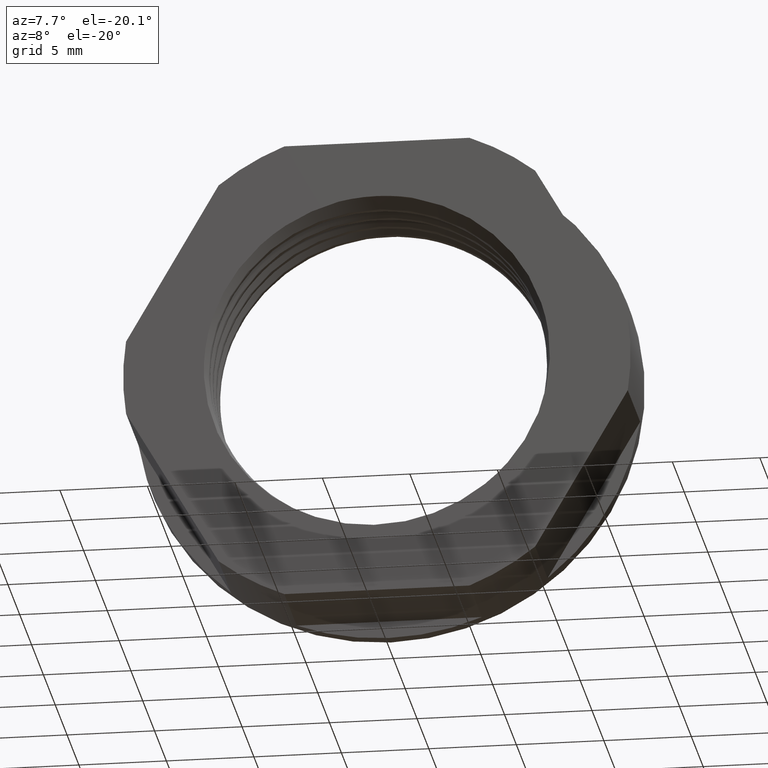
[diagram: clean part render]
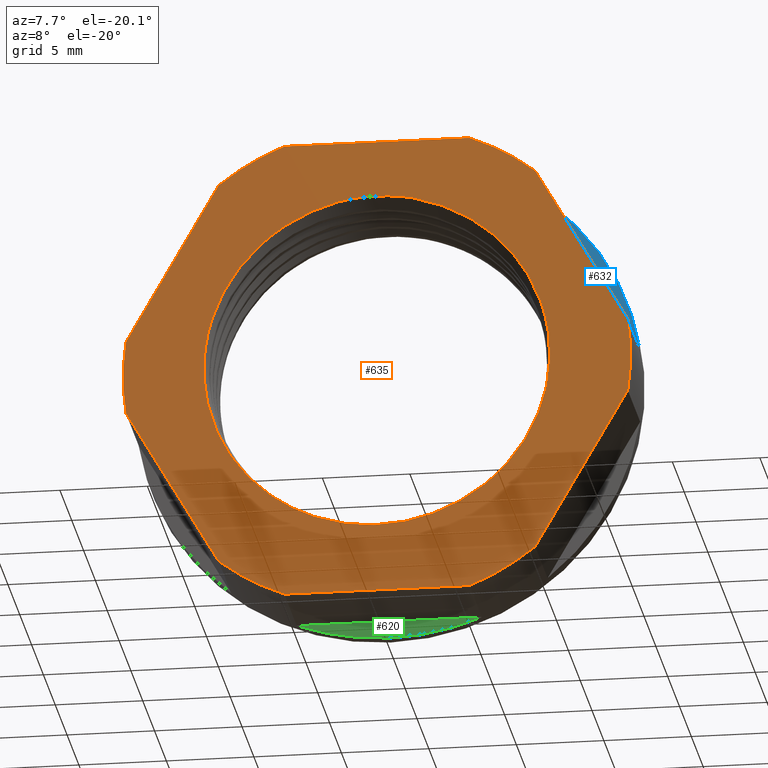
[diagram: same view with three faces highlighted in distinct colors, each labeled with its STEP entity id]
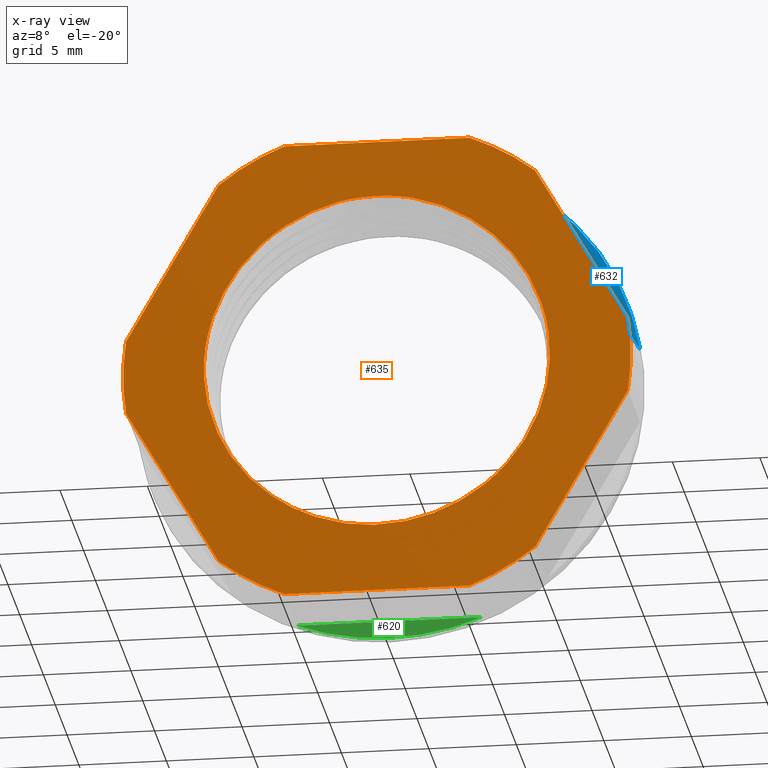
[diagram: x-ray of the same camera — body ghosted, the three highlighted faces saturated]
A machine part, auxiliary view with three faces highlighted in distinct colors.
The next image is the same camera in x-ray (body ghosted, the three faces saturated) — at least one of them is partly hidden behind the body in this view.
Their STEP definitions:

[orange] entity #635 — the highlighted planar face has unit normal (0, -1, 0).
#212 = CARTESIAN_POINT ( 'NONE',  ( -9.045591640025342900, -16.94999999999999900, 11.33257569495583400 ) ) ;
#213 = CARTESIAN_POINT ( 'NONE',  ( 5.291502622129183200, -16.94999999999999900, 13.50000000000000000 ) ) ;
#216 = CARTESIAN_POINT ( 'NONE',  ( -14.33709426215451700, -16.94999999999999900, -2.167424305044142400 ) ) ;
#217 = CARTESIAN_POINT ( 'NONE',  ( -5.291502622129190300, -16.94999999999999900, -13.49999999999999600 ) ) ;
#218 = CARTESIAN_POINT ( 'NONE',  ( -9.045591640025335800, -16.94999999999999900, -11.33257569495583900 ) ) ;
#225 = CARTESIAN_POINT ( 'NONE',  ( -5.291502622129185900, -16.94999999999999900, 13.49999999999999800 ) ) ;
#230 = CARTESIAN_POINT ( 'NONE',  ( 0.0000000000000000000, -16.94999999999999900, 10.25000000000000000 ) ) ;
#236 = CARTESIAN_POINT ( 'NONE',  ( 9.045591640025362400, -16.94999999999999900, -11.33257569495581600 ) ) ;
#237 = CARTESIAN_POINT ( 'NONE',  ( -5.974655530081877300, -16.94999999999999900, -7.573463129866142100 ) ) ;
#239 = CARTESIAN_POINT ( 'NONE',  ( -2.205671759929469300, -16.94999999999999900, 10.00987073280417900 ) ) ;
#241 = CARTESIAN_POINT ( 'NONE',  ( 14.33709426215451200, -16.94999999999999900, 2.167424305044173000 ) ) ;
#247 = CARTESIAN_POINT ( 'NONE',  ( 5.291502622129186800, -16.94999999999999900, -13.49999999999999800 ) ) ;
#256 = CARTESIAN_POINT ( 'NONE',  ( 14.33709426215450800, -16.94999999999999900, -2.167424305044193900 ) ) ;
#257 = CARTESIAN_POINT ( 'NONE',  ( -14.33709426215451200, -16.94999999999999900, 2.167424305044173500 ) ) ;
#258 = CARTESIAN_POINT ( 'NONE',  ( 1.983956533181644400, -16.94999999999999900, 10.05616310898176900 ) ) ;
#259 = CARTESIAN_POINT ( 'NONE',  ( 9.045591640025344700, -16.94999999999999900, 11.33257569495583000 ) ) ;
#261 = CARTESIAN_POINT ( 'NONE',  ( 6.144543143155605200, -16.94999999999999900, -7.436292224252573700 ) ) ;
#537 = EDGE_CURVE ( 'NONE', #757, #781, #1429, .T. ) ;
#549 = EDGE_CURVE ( 'NONE', #749, #775, #1445, .T. ) ;
#561 = EDGE_CURVE ( 'NONE', #761, #784, #1455, .T. ) ;
#564 = EDGE_CURVE ( 'NONE', #785, #841, #1478, .T. ) ;
#569 = EDGE_CURVE ( 'NONE', #841, #776, #2420, .T. ) ;
#571 = EDGE_CURVE ( 'NONE', #757, #792, #1150, .T. ) ;
#576 = EDGE_CURVE ( 'NONE', #760, #775, #1133, .T. ) ;
#580 = EDGE_CURVE ( 'NONE', #761, #781, #1137, .T. ) ;
#584 = EDGE_CURVE ( 'NONE', #760, #771, #1463, .T. ) ;
#585 = EDGE_CURVE ( 'NONE', #747, #785, #1488, .T. ) ;
#589 = EDGE_CURVE ( 'NONE', #748, #771, #2377, .T. ) ;
#591 = EDGE_CURVE ( 'NONE', #754, #792, #1453, .T. ) ;
#592 = EDGE_CURVE ( 'NONE', #768, #747, #2422, .T. ) ;
#595 = EDGE_CURVE ( 'NONE', #776, #768, #2423, .T. ) ;
#606 = EDGE_CURVE ( 'NONE', #749, #784, #1700, .T. ) ;
#621 = EDGE_CURVE ( 'NONE', #748, #746, #1531, .T. ) ;
#623 = EDGE_CURVE ( 'NONE', #754, #746, #1858, .T. ) ;
#635 = ADVANCED_FACE ( 'NONE', ( #1926, #1889 ), #1922, .T. ) ;
#700 = EDGE_LOOP ( 'NONE', ( #848, #832, #894, #915, #859, #914, #880, #905, #907, #908, #865, #878 ) ) ;
#707 = EDGE_LOOP ( 'NONE', ( #716, #847, #863, #835, #849 ) ) ;
#716 = ORIENTED_EDGE ( 'NONE', *, *, #569, .T. ) ;
#746 = VERTEX_POINT ( 'NONE', #257 ) ;
#747 = VERTEX_POINT ( 'NONE', #239 ) ;
#748 = VERTEX_POINT ( 'NONE', #216 ) ;
#749 = VERTEX_POINT ( 'NONE', #236 ) ;
#754 = VERTEX_POINT ( 'NONE', #212 ) ;
#757 = VERTEX_POINT ( 'NONE', #213 ) ;
#760 = VERTEX_POINT ( 'NONE', #217 ) ;
#761 = VERTEX_POINT ( 'NONE', #241 ) ;
#768 = VERTEX_POINT ( 'NONE', #237 ) ;
#771 = VERTEX_POINT ( 'NONE', #218 ) ;
#775 = VERTEX_POINT ( 'NONE', #247 ) ;
#776 = VERTEX_POINT ( 'NONE', #261 ) ;
#781 = VERTEX_POINT ( 'NONE', #259 ) ;
#784 = VERTEX_POINT ( 'NONE', #256 ) ;
#785 = VERTEX_POINT ( 'NONE', #230 ) ;
#792 = VERTEX_POINT ( 'NONE', #225 ) ;
#832 = ORIENTED_EDGE ( 'NONE', *, *, #621, .F. ) ;
#835 = ORIENTED_EDGE ( 'NONE', *, *, #585, .T. ) ;
#841 = VERTEX_POINT ( 'NONE', #258 ) ;
#847 = ORIENTED_EDGE ( 'NONE', *, *, #595, .T. ) ;
#848 = ORIENTED_EDGE ( 'NONE', *, *, #623, .T. ) ;
#849 = ORIENTED_EDGE ( 'NONE', *, *, #564, .T. ) ;
#859 = ORIENTED_EDGE ( 'NONE', *, *, #576, .T. ) ;
#863 = ORIENTED_EDGE ( 'NONE', *, *, #592, .T. ) ;
#865 = ORIENTED_EDGE ( 'NONE', *, *, #571, .T. ) ;
#878 = ORIENTED_EDGE ( 'NONE', *, *, #591, .F. ) ;
#880 = ORIENTED_EDGE ( 'NONE', *, *, #606, .T. ) ;
#894 = ORIENTED_EDGE ( 'NONE', *, *, #589, .T. ) ;
#905 = ORIENTED_EDGE ( 'NONE', *, *, #561, .F. ) ;
#907 = ORIENTED_EDGE ( 'NONE', *, *, #580, .T. ) ;
#908 = ORIENTED_EDGE ( 'NONE', *, *, #537, .F. ) ;
#914 = ORIENTED_EDGE ( 'NONE', *, *, #549, .F. ) ;
#915 = ORIENTED_EDGE ( 'NONE', *, *, #584, .F. ) ;
#941 = CARTESIAN_POINT ( 'NONE',  ( 0.0000000000000000000, -16.94999999999999900, 0.0000000000000000000 ) ) ;
#942 = DIRECTION ( 'NONE',  ( -0.0000000000000000000, 1.000000000000000000, -0.0000000000000000000 ) ) ;
#943 = DIRECTION ( 'NONE',  ( 0.0000000000000000000, 0.0000000000000000000, -1.000000000000000000 ) ) ;
#968 = CARTESIAN_POINT ( 'NONE',  ( 0.0000000000000000000, -16.94999999999999900, 0.0000000000000000000 ) ) ;
#969 = DIRECTION ( 'NONE',  ( -0.0000000000000000000, 1.000000000000000000, -0.0000000000000000000 ) ) ;
#990 = DIRECTION ( 'NONE',  ( 8.881784197001252300E-016, 0.0000000000000000000, -1.000000000000000000 ) ) ;
#1064 = CARTESIAN_POINT ( 'NONE',  ( 1.983956533181644400, -16.94999999999999900, 10.05616310898176900 ) ) ;
#1065 = DIRECTION ( 'NONE',  ( -0.0000000000000000000, 1.000000000000000000, -0.0000000000000000000 ) ) ;
#1066 = CARTESIAN_POINT ( 'NONE',  ( 2.439341057739169200, -16.95000000000000300, 9.953836712150849300 ) ) ;
#1067 = DIRECTION ( 'NONE',  ( 0.0000000000000000000, 0.0000000000000000000, -1.000000000000000000 ) ) ;
#1070 = DIRECTION ( 'NONE',  ( 0.0000000000000000000, 0.0000000000000000000, -1.000000000000000000 ) ) ;
#1072 = CARTESIAN_POINT ( 'NONE',  ( 2.893623122085117000, -16.94999999999999900, 9.818351411251621000 ) ) ;
#1073 = CARTESIAN_POINT ( 'NONE',  ( 3.771033077095955500, -16.94999999999999600, 9.488892789449479900 ) ) ;
#1074 = CARTESIAN_POINT ( 'NONE',  ( 4.194879845517786700, -16.94999999999999600, 9.295385743889102800 ) ) ;
#1075 = CARTESIAN_POINT ( 'NONE',  ( 5.408174023068104600, -16.95000000000001000, 8.602052114201978100 ) ) ;
#1076 = CARTESIAN_POINT ( 'NONE',  ( 6.525269508887746800, -16.95000000000000300, 7.739964048729434300 ) ) ;
#1077 = CARTESIAN_POINT ( 'NONE',  ( 8.076914458625999800, -16.95000000000000300, 6.003836458888972800 ) ) ;
#1078 = CARTESIAN_POINT ( 'NONE',  ( 8.340676717325779400, -16.95000000000000300, 5.609032992062153300 ) ) ;
#1080 = CARTESIAN_POINT ( 'NONE',  ( 9.005723773938594700, -16.95000000000001000, 4.377459087218518600 ) ) ;
#1083 = CARTESIAN_POINT ( 'NONE',  ( 5.013449165093358100, -16.94999999999998500, 8.851963172312284900 ) ) ;
#1084 = CARTESIAN_POINT ( 'NONE',  ( 9.493154033249798100, -16.95000000000001000, 3.062732793654617100 ) ) ;
#1085 = CARTESIAN_POINT ( 'NONE',  ( 9.915878206985052400, -16.94999999999999600, 0.7635781952563502900 ) ) ;
#1087 = CARTESIAN_POINT ( 'NONE',  ( 7.192787527019289600, -16.94999999999999900, 7.090168983500257500 ) ) ;
#1088 = CARTESIAN_POINT ( 'NONE',  ( 9.825406449304612300, -16.95000000000000600, 1.690508015303501700 ) ) ;
#1089 = CARTESIAN_POINT ( 'NONE',  ( 0.0000000000000000000, -16.94999999999999900, 0.0000000000000000000 ) ) ;
#1092 = CARTESIAN_POINT ( 'NONE',  ( 9.864639634185879300, -16.94999999999999200, -0.4102757157103477100 ) ) ;
#1093 = CARTESIAN_POINT ( 'NONE',  ( 9.845766962212840300, -16.95000000000000300, -0.6462498485281831200 ) ) ;
#1094 = CARTESIAN_POINT ( 'NONE',  ( 9.791519739661049800, -16.94999999999999900, -1.112304402917254200 ) ) ;
#1095 = CARTESIAN_POINT ( 'NONE',  ( 9.756141003678495200, -16.94999999999999200, -1.343290073347451100 ) ) ;
#1100 = CARTESIAN_POINT ( 'NONE',  ( 6.167414772369514100, -16.95000000000001000, 8.043720548986460300 ) ) ;
#1101 = CARTESIAN_POINT ( 'NONE',  ( 7.503479304800611000, -16.94999999999999900, 6.743289189596457500 ) ) ;
#1103 = CARTESIAN_POINT ( 'NONE',  ( 8.803967217686727400, -16.94999999999999900, 4.797012241301902500 ) ) ;
#1104 = CARTESIAN_POINT ( 'NONE',  ( 9.350034010654027800, -16.95000000000001400, 3.511527537128751800 ) ) ;
#1105 = DIRECTION ( 'NONE',  ( -0.0000000000000000000, 1.000000000000000000, -0.0000000000000000000 ) ) ;
#1108 = CARTESIAN_POINT ( 'NONE',  ( 0.0000000000000000000, -16.94999999999999900, 0.0000000000000000000 ) ) ;
#1117 = CARTESIAN_POINT ( 'NONE',  ( 9.203108965238902400, -16.94999999999999600, -3.364135484670377300 ) ) ;
#1118 = DIRECTION ( 'NONE',  ( -1.000000000000000000, 0.0000000000000000000, -2.081668171172169700E-016 ) ) ;
#1120 = CARTESIAN_POINT ( 'NONE',  ( 6.857274697728805700, -16.95000000000000600, -6.836040393671275700 ) ) ;
#1122 = CARTESIAN_POINT ( 'NONE',  ( 7.507126428066445800, -16.95000000000001000, -6.154935727862492100 ) ) ;
#1123 = CARTESIAN_POINT ( 'NONE',  ( 9.017052777795754500, -16.94999999999999600, -3.801012142619362600 ) ) ;
#1124 = CARTESIAN_POINT ( 'NONE',  ( 8.346798934203786000, -16.94999999999999900, -5.031645817817508100 ) ) ;
#1133 = LINE ( 'NONE', #1136, #1454 ) ;
#1136 = CARTESIAN_POINT ( 'NONE',  ( -5.679568645592710600, -16.94999999999999900, -13.50000000000000200 ) ) ;
#1137 = LINE ( 'NONE', #1180, #1484 ) ;
#1138 = CARTESIAN_POINT ( 'NONE',  ( 6.144543143155605200, -16.94999999999999900, -7.436292224252573700 ) ) ;
#1139 = DIRECTION ( 'NONE',  ( 1.000000000000000000, 0.0000000000000000000, 2.081668171172169700E-016 ) ) ;
#1142 = CARTESIAN_POINT ( 'NONE',  ( 8.589014060184313200, -16.94999999999999600, -4.633664672327876500 ) ) ;
#1143 = CARTESIAN_POINT ( 'NONE',  ( 6.511364237388283600, -16.94999999999999600, -7.149610080928056300 ) ) ;
#1144 = CARTESIAN_POINT ( 'NONE',  ( 9.506511089265158500, -16.94999999999999900, -2.480229746508164200 ) ) ;
#1149 = CARTESIAN_POINT ( 'NONE',  ( 9.625718633772603300, -16.94999999999998900, -2.030240780154815500 ) ) ;
#1150 = LINE ( 'NONE', #1151, #1480 ) ;
#1151 = CARTESIAN_POINT ( 'NONE',  ( 5.679568645592732800, -16.94999999999999900, 13.50000000000000200 ) ) ;
#1160 = CARTESIAN_POINT ( 'NONE',  ( 7.806712100327884800, -16.95000000000000300, -5.791396054968911900 ) ) ;
#1165 = DIRECTION ( 'NONE',  ( 0.0000000000000000000, 0.0000000000000000000, -1.000000000000000000 ) ) ;
#1169 = DIRECTION ( 'NONE',  ( 6.217248937900878200E-015, 0.0000000000000000000, -1.000000000000000000 ) ) ;
#1172 = CARTESIAN_POINT ( 'NONE',  ( 0.0000000000000000000, -16.94999999999999900, 0.0000000000000000000 ) ) ;
#1174 = DIRECTION ( 'NONE',  ( -0.0000000000000000000, 1.000000000000000000, -0.0000000000000000000 ) ) ;
#1180 = CARTESIAN_POINT ( 'NONE',  ( 14.53112727388628200, -16.94999999999999900, 1.831349270379130800 ) ) ;
#1195 = DIRECTION ( 'NONE',  ( -0.0000000000000000000, 1.000000000000000000, -0.0000000000000000000 ) ) ;
#1208 = DIRECTION ( 'NONE',  ( -0.4999999999999998900, 0.0000000000000000000, 0.8660254037844387100 ) ) ;
#1211 = CARTESIAN_POINT ( 'NONE',  ( 0.0000000000000000000, -16.94999999999999900, 0.0000000000000000000 ) ) ;
#1424 = AXIS2_PLACEMENT_3D ( 'NONE', #941, #942, #943 ) ;
#1429 = CIRCLE ( 'NONE', #1424, 14.50000000000000000 ) ;
#1436 = AXIS2_PLACEMENT_3D ( 'NONE', #968, #969, #990 ) ;
#1445 = CIRCLE ( 'NONE', #1436, 14.50000000000000000 ) ;
#1453 = CIRCLE ( 'NONE', #1461, 14.50000000000000000 ) ;
#1454 = VECTOR ( 'NONE', #1139, 1000.000000000000000 ) ;
#1455 = CIRCLE ( 'NONE', #1458, 14.50000000000000000 ) ;
#1458 = AXIS2_PLACEMENT_3D ( 'NONE', #1108, #1105, #1067 ) ;
#1461 = AXIS2_PLACEMENT_3D ( 'NONE', #2409, #2372, #2370 ) ;
#1463 = CIRCLE ( 'NONE', #1485, 14.50000000000000000 ) ;
#1471 = VECTOR ( 'NONE', #2395, 1000.000000000000000 ) ;
#1478 = CIRCLE ( 'NONE', #1479, 10.25000000000000000 ) ;
#1479 = AXIS2_PLACEMENT_3D ( 'NONE', #1089, #1065, #1070 ) ;
#1480 = VECTOR ( 'NONE', #1118, 1000.000000000000000 ) ;
#1484 = VECTOR ( 'NONE', #1208, 1000.000000000000000 ) ;
#1485 = AXIS2_PLACEMENT_3D ( 'NONE', #1172, #1174, #1165 ) ;
#1488 = CIRCLE ( 'NONE', #1489, 10.25000000000000000 ) ;
#1489 = AXIS2_PLACEMENT_3D ( 'NONE', #1211, #1195, #1169 ) ;
#1498 = VECTOR ( 'NONE', #1692, 1000.000000000000000 ) ;
#1502 = VECTOR ( 'NONE', #1872, 1000.000000000000000 ) ;
#1514 = AXIS2_PLACEMENT_3D ( 'NONE', #1853, #1863, #1842 ) ;
#1519 = AXIS2_PLACEMENT_3D ( 'NONE', #1896, #1885, #1920 ) ;
#1531 = CIRCLE ( 'NONE', #1514, 14.50000000000000000 ) ;
#1547 = CARTESIAN_POINT ( 'NONE',  ( 4.294305493426485900, -16.95000000000000300, -8.593351037195597900 ) ) ;
#1550 = CARTESIAN_POINT ( 'NONE',  ( 0.6431028404704355300, -16.95000000000001400, -9.557504761224674200 ) ) ;
#1551 = CARTESIAN_POINT ( 'NONE',  ( 4.539695980263184400, -16.95000000000012700, -8.470881347303214100 ) ) ;
#1552 = CARTESIAN_POINT ( 'NONE',  ( -1.781254143985374600, -16.94999999999999600, -9.416556803645205400 ) ) ;
#1553 = CARTESIAN_POINT ( 'NONE',  ( -5.070672530455689200, -16.94999999999988600, -8.193482386941092000 ) ) ;
#1555 = CARTESIAN_POINT ( 'NONE',  ( 1.184409232556567600, -16.95000000000001000, -9.506762659823813500 ) ) ;
#1557 = CARTESIAN_POINT ( 'NONE',  ( 0.3728032755091667500, -16.94999999999998500, -9.571541494793752500 ) ) ;
#1558 = CARTESIAN_POINT ( 'NONE',  ( -5.535924414885894200, -16.94999999999998900, -7.900499537785349500 ) ) ;
#1560 = CARTESIAN_POINT ( 'NONE',  ( -0.9755754977931190300, -16.94999999999999200, -9.541755672635305900 ) ) ;
#1566 = CARTESIAN_POINT ( 'NONE',  ( 5.257090311123130600, -16.95000000000013100, -8.075524031115341100 ) ) ;
#1569 = CARTESIAN_POINT ( 'NONE',  ( -4.107512183524747200, -16.94999999999989600, -8.696236888791325700 ) ) ;
#1571 = CARTESIAN_POINT ( 'NONE',  ( 3.546858033440504900, -16.95000000003599900, -8.916899303981919500 ) ) ;
#1572 = CARTESIAN_POINT ( 'NONE',  ( -2.050598785716830200, -16.94999999999997100, -9.363193040597471000 ) ) ;
#1575 = CARTESIAN_POINT ( 'NONE',  ( 6.144543143155605200, -16.94999999999999900, -7.436292224252573700 ) ) ;
#1576 = CARTESIAN_POINT ( 'NONE',  ( -2.579833939521486200, -16.94999999999996700, -9.235358139384816300 ) ) ;
#1579 = CARTESIAN_POINT ( 'NONE',  ( 2.782861948915905000, -16.95000000003599900, -9.187655227507066900 ) ) ;
#1581 = CARTESIAN_POINT ( 'NONE',  ( -3.610132806415962600, -16.95000000000000300, -8.906655760806531300 ) ) ;
#1582 = CARTESIAN_POINT ( 'NONE',  ( 1.456521985159069200, -16.95000000000000600, -9.469795984800301300 ) ) ;
#1583 = CARTESIAN_POINT ( 'NONE',  ( -5.974655530081877300, -16.94999999999999900, -7.573463129866142100 ) ) ;
#1584 = CARTESIAN_POINT ( 'NONE',  ( 3.798231099793294900, -16.95000000000000300, -8.816144464086386600 ) ) ;
#1590 = CARTESIAN_POINT ( 'NONE',  ( 5.713343838926842700, -16.94999999999999200, -7.773287949634442000 ) ) ;
#1592 = CARTESIAN_POINT ( 'NONE',  ( -2.840380983247379600, -16.94999999999999600, -9.160888103726220400 ) ) ;
#1596 = CARTESIAN_POINT ( 'NONE',  ( 2.260427568648726700, -16.95000000000001000, -9.326356743341325000 ) ) ;
#1599 = CARTESIAN_POINT ( 'NONE',  ( -0.4370536008698964200, -16.94999999999999200, -9.580260113329545700 ) ) ;
#1689 = CARTESIAN_POINT ( 'NONE',  ( 8.851558628293572500, -16.94999999999999900, -11.66865072962088200 ) ) ;
#1692 = DIRECTION ( 'NONE',  ( 0.4999999999999998900, 0.0000000000000000000, 0.8660254037844387100 ) ) ;
#1700 = LINE ( 'NONE', #1689, #1498 ) ;
#1842 = DIRECTION ( 'NONE',  ( 0.0000000000000000000, 0.0000000000000000000, -1.000000000000000000 ) ) ;
#1851 = CARTESIAN_POINT ( 'NONE',  ( -8.851558628293563700, -16.94999999999999900, 11.66865072962088200 ) ) ;
#1853 = CARTESIAN_POINT ( 'NONE',  ( 0.0000000000000000000, -16.94999999999999900, 0.0000000000000000000 ) ) ;
#1858 = LINE ( 'NONE', #1851, #1502 ) ;
#1863 = DIRECTION ( 'NONE',  ( -0.0000000000000000000, 1.000000000000000000, -0.0000000000000000000 ) ) ;
#1872 = DIRECTION ( 'NONE',  ( -0.4999999999999998900, 0.0000000000000000000, -0.8660254037844387100 ) ) ;
#1885 = DIRECTION ( 'NONE',  ( 0.0000000000000000000, -1.000000000000000000, 0.0000000000000000000 ) ) ;
#1889 = FACE_OUTER_BOUND ( 'NONE', #700, .T. ) ;
#1896 = CARTESIAN_POINT ( 'NONE',  ( 0.0000000000000000000, -16.94999999999999900, 0.0000000000000000000 ) ) ;
#1920 = DIRECTION ( 'NONE',  ( 0.0000000000000000000, -0.0000000000000000000, -1.000000000000000000 ) ) ;
#1922 = PLANE ( 'NONE',  #1519 ) ;
#1926 = FACE_BOUND ( 'NONE', #707, .T. ) ;
#2365 = CARTESIAN_POINT ( 'NONE',  ( -9.577611390587206200, -16.95000000000001400, -2.246445974400097100 ) ) ;
#2367 = CARTESIAN_POINT ( 'NONE',  ( -14.53112727388628200, -16.94999999999999900, -1.831349270379120100 ) ) ;
#2368 = CARTESIAN_POINT ( 'NONE',  ( -9.133108864240902800, -16.95000000000001000, 4.185638365824819300 ) ) ;
#2369 = CARTESIAN_POINT ( 'NONE',  ( -9.897145492320797500, -16.94999999999999600, 0.5379661207244425000 ) ) ;
#2370 = DIRECTION ( 'NONE',  ( 3.552713678800500900E-015, 0.0000000000000000000, -1.000000000000000000 ) ) ;
#2371 = CARTESIAN_POINT ( 'NONE',  ( -7.349948658113175900, -16.94999999999999900, 6.927707240097743300 ) ) ;
#2372 = DIRECTION ( 'NONE',  ( -0.0000000000000000000, 1.000000000000000000, -0.0000000000000000000 ) ) ;
#2376 = CARTESIAN_POINT ( 'NONE',  ( -7.369334469144824600, -16.94999999999999600, -6.319324347801363700 ) ) ;
#2377 = LINE ( 'NONE', #2367, #1471 ) ;
#2378 = CARTESIAN_POINT ( 'NONE',  ( -9.447726164953213200, -16.94999999999999600, -2.694469090101457600 ) ) ;
#2379 = CARTESIAN_POINT ( 'NONE',  ( -5.974655530081877300, -16.94999999999999900, -7.573463129866142100 ) ) ;
#2380 = CARTESIAN_POINT ( 'NONE',  ( -9.829879629896602500, -16.94999999999999600, -0.8584477574783030400 ) ) ;
#2381 = CARTESIAN_POINT ( 'NONE',  ( -8.933545337970080900, -16.94999999999999900, -3.993815073723889300 ) ) ;
#2382 = CARTESIAN_POINT ( 'NONE',  ( -8.484802191306693300, -16.94999999999999200, -4.821991525096049900 ) ) ;
#2384 = CARTESIAN_POINT ( 'NONE',  ( -9.758645406185449300, -16.95000000000000600, 1.938657282426738100 ) ) ;
#2385 = CARTESIAN_POINT ( 'NONE',  ( -7.652418896535002600, -16.95000000000000300, 6.573847908552996200 ) ) ;
#2387 = CARTESIAN_POINT ( 'NONE',  ( -6.694329031829937500, -16.95000000000000300, 7.594612379036564500 ) ) ;
#2389 = CARTESIAN_POINT ( 'NONE',  ( -6.338838220756613900, -16.94999999999999900, 7.909491971388496800 ) ) ;
#2390 = CARTESIAN_POINT ( 'NONE',  ( -4.400279420049026900, -16.95000000000000300, 9.199792528679509500 ) ) ;
#2391 = CARTESIAN_POINT ( 'NONE',  ( -5.597097661414340000, -16.95000000000000300, 8.480129444516221000 ) ) ;
#2392 = CARTESIAN_POINT ( 'NONE',  ( -3.978516101405986700, -16.94999999999999900, 9.403867954108235900 ) ) ;
#2393 = CARTESIAN_POINT ( 'NONE',  ( -5.209292573051754100, -16.94999999999999900, 8.738038500430601400 ) ) ;
#2394 = CARTESIAN_POINT ( 'NONE',  ( -3.102414190728953100, -16.94999999999999600, 9.754679238904660800 ) ) ;
#2395 = DIRECTION ( 'NONE',  ( 0.4999999999999998900, 0.0000000000000000000, -0.8660254037844387100 ) ) ;
#2396 = CARTESIAN_POINT ( 'NONE',  ( -9.827262203018627000, -16.95000000000001000, 1.469229861521238000 ) ) ;
#2397 = CARTESIAN_POINT ( 'NONE',  ( -6.349610246102445300, -16.95000000000000300, -7.293966556196005000 ) ) ;
#2398 = CARTESIAN_POINT ( 'NONE',  ( -9.125691950212875300, -16.94999999999999900, -3.568153212936591600 ) ) ;
#2399 = CARTESIAN_POINT ( 'NONE',  ( -2.657388980884499500, -16.95000000000000600, 9.897775775060655000 ) ) ;
#2400 = CARTESIAN_POINT ( 'NONE',  ( -8.206628686603592000, -16.94999999999999900, 5.825274216664027400 ) ) ;
#2401 = CARTESIAN_POINT ( 'NONE',  ( -9.724452616931374700, -16.95000000000001400, -1.557176849059719500 ) ) ;
#2402 = CARTESIAN_POINT ( 'NONE',  ( -9.853580293757746100, -16.94999999999999200, -0.6257470734352335000 ) ) ;
#2404 = CARTESIAN_POINT ( 'NONE',  ( -9.899636487688571400, -16.94999999999998500, 0.07242508928270982600 ) ) ;
#2406 = CARTESIAN_POINT ( 'NONE',  ( -9.457197947806815100, -16.95000000000000600, 3.312666326968141100 ) ) ;
#2407 = CARTESIAN_POINT ( 'NONE',  ( -6.708690081166143000, -16.94999999999999600, -6.982445766452126900 ) ) ;
#2408 = CARTESIAN_POINT ( 'NONE',  ( -9.765419270944464700, -16.94999999999999600, -1.323801372295036400 ) ) ;
#2409 = CARTESIAN_POINT ( 'NONE',  ( 0.0000000000000000000, -16.94999999999999900, 0.0000000000000000000 ) ) ;
#2410 = CARTESIAN_POINT ( 'NONE',  ( -8.459129030825117500, -16.95000000000001000, 5.429440949235090100 ) ) ;
#2412 = CARTESIAN_POINT ( 'NONE',  ( -8.230779767267854700, -16.94999999999999200, -5.218956953030123600 ) ) ;
#2413 = CARTESIAN_POINT ( 'NONE',  ( -2.205671759929469300, -16.94999999999999900, 10.00987073280417900 ) ) ;
#2418 = CARTESIAN_POINT ( 'NONE',  ( -7.673630494680195600, -16.94999999999999200, -5.966527109041997800 ) ) ;
#2420 = B_SPLINE_CURVE_WITH_KNOTS ( 'NONE', 3,
 ( #1064, #1066, #1072, #1073, #1074, #1083, #1075, #1100, #1076, #1087, #1101, #1077, #1078, #1103, #1080, #1104, #1084, #1088, #1085, #1092, #1093, #1094, #1095, #1149, #1144, #1117, #1123, #1142, #1124, #1160, #1122, #1120, #1143, #1138 ),
 .UNSPECIFIED., .F., .F.,
 ( 4, 2, 2, 2, 2, 2, 2, 2, 2, 2, 2, 2, 2, 2, 2, 2, 4 ),
 ( 0.07737872929187127000, 0.07878900955273728000, 0.08019928981360328900, 0.08160957007446929800, 0.08301985033533530700, 0.08443013059620131700, 0.08584041085706731200, 0.08725069111793332100, 0.08866097137879933000, 0.09148153190053134900, 0.09218667203096433900, 0.09289181216139734400, 0.09430209242226335300, 0.09571237268312936300, 0.09712265294399537200, 0.09853293320486138100, 0.09994321346572739000 ),
 .UNSPECIFIED. ) ;
#2422 = B_SPLINE_CURVE_WITH_KNOTS ( 'NONE', 3,
 ( #2379, #2397, #2407, #2376, #2418, #2412, #2382, #2381, #2398, #2378, #2365, #2401, #2408, #2380, #2402, #2404, #2369, #2396, #2384, #2406, #2368, #2410, #2400, #2385, #2371, #2387, #2389, #2391, #2393, #2390, #2392, #2394, #2399, #2413 ),
 .UNSPECIFIED., .F., .F.,
 ( 4, 2, 2, 2, 2, 2, 2, 2, 2, 2, 2, 2, 2, 2, 2, 2, 4 ),
 ( 0.1046931022469330800, 0.1061051473739973400, 0.1075171925010616100, 0.1089292376281258700, 0.1103412827551901300, 0.1117533278822543900, 0.1124593504457865300, 0.1131653730093186700, 0.1145774181363829300, 0.1159894632634472000, 0.1188135535175757200, 0.1202255986446399800, 0.1216376437717042500, 0.1230496888987685100, 0.1244617340258327700, 0.1258737791528970500, 0.1272858242799613000 ),
 .UNSPECIFIED. ) ;
#2423 = B_SPLINE_CURVE_WITH_KNOTS ( 'NONE', 3,
 ( #1575, #1590, #1566, #1551, #1547, #1584, #1571, #1579, #1596, #1582, #1555, #1550, #1557, #1599, #1560, #1552, #1572, #1576, #1592, #1581, #1569, #1553, #1558, #1583 ),
 .UNSPECIFIED., .F., .F.,
 ( 4, 2, 2, 2, 2, 2, 2, 2, 2, 2, 2, 4 ),
 ( 0.0000000000000000000, 0.001641496297886392100, 0.002462244446829589500, 0.003282992595772787200, 0.004924488893659181700, 0.005745237042602379400, 0.006565985191545577000, 0.008207481489431969800, 0.009028229638375169200, 0.009848977787318365100, 0.01149047408520475900, 0.01313197038309115400 ),
 .UNSPECIFIED. ) ;

[blue] entity #632 — the highlighted planar face has unit normal (0, -1, 0).
#194 = CARTESIAN_POINT ( 'NONE',  ( 14.33709426215451200, -11.70000000000000300, 2.167424305044172600 ) ) ;
#205 = CARTESIAN_POINT ( 'NONE',  ( 9.045591640025344700, -11.70000000000000300, 11.33257569495583000 ) ) ;
#551 = EDGE_CURVE ( 'NONE', #738, #745, #1441, .T. ) ;
#579 = EDGE_CURVE ( 'NONE', #738, #745, #1206, .T. ) ;
#632 = ADVANCED_FACE ( 'NONE', ( #1912 ), #1887, .T. ) ;
#658 = ORIENTED_EDGE ( 'NONE', *, *, #551, .F. ) ;
#694 = ORIENTED_EDGE ( 'NONE', *, *, #579, .T. ) ;
#710 = EDGE_LOOP ( 'NONE', ( #694, #658 ) ) ;
#738 = VERTEX_POINT ( 'NONE', #205 ) ;
#745 = VERTEX_POINT ( 'NONE', #194 ) ;
#986 = CARTESIAN_POINT ( 'NONE',  ( 0.0000000000000000000, -11.70000000000000300, 0.0000000000000000000 ) ) ;
#1017 = DIRECTION ( 'NONE',  ( -8.881784197001252300E-016, 0.0000000000000000000, -1.000000000000000000 ) ) ;
#1038 = DIRECTION ( 'NONE',  ( 0.0000000000000000000, 1.000000000000000000, 0.0000000000000000000 ) ) ;
#1184 = CARTESIAN_POINT ( 'NONE',  ( 14.53112727388628200, -11.70000000000000300, 1.831349270379130800 ) ) ;
#1206 = LINE ( 'NONE', #1184, #1486 ) ;
#1207 = DIRECTION ( 'NONE',  ( 0.4999999999999998900, -0.0000000000000000000, -0.8660254037844387100 ) ) ;
#1441 = CIRCLE ( 'NONE', #1442, 14.50000000000000000 ) ;
#1442 = AXIS2_PLACEMENT_3D ( 'NONE', #986, #1038, #1017 ) ;
#1486 = VECTOR ( 'NONE', #1207, 1000.000000000000000 ) ;
#1500 = AXIS2_PLACEMENT_3D ( 'NONE', #1924, #1909, #1901 ) ;
#1887 = PLANE ( 'NONE',  #1500 ) ;
#1901 = DIRECTION ( 'NONE',  ( 0.0000000000000000000, -0.0000000000000000000, -1.000000000000000000 ) ) ;
#1909 = DIRECTION ( 'NONE',  ( 0.0000000000000000000, -1.000000000000000000, 0.0000000000000000000 ) ) ;
#1912 = FACE_OUTER_BOUND ( 'NONE', #710, .T. ) ;
#1924 = CARTESIAN_POINT ( 'NONE',  ( 0.0000000000000000000, -11.70000000000000300, 0.0000000000000000000 ) ) ;

[green] entity #620 — the highlighted planar face has unit normal (0, -1, 0).
#240 = CARTESIAN_POINT ( 'NONE',  ( 0.0000000000000000000, -11.70000000000000300, -14.50000000000000000 ) ) ;
#245 = CARTESIAN_POINT ( 'NONE',  ( -5.291502622129188500, -11.70000000000000300, -13.49999999999999800 ) ) ;
#262 = CARTESIAN_POINT ( 'NONE',  ( 5.291502622129186800, -11.70000000000000300, -13.49999999999999800 ) ) ;
#541 = EDGE_CURVE ( 'NONE', #829, #756, #1447, .T. ) ;
#587 = EDGE_CURVE ( 'NONE', #756, #766, #1469, .T. ) ;
#620 = ADVANCED_FACE ( 'NONE', ( #1789 ), #1866, .T. ) ;
#624 = EDGE_CURVE ( 'NONE', #829, #766, #1874, .T. ) ;
#711 = EDGE_LOOP ( 'NONE', ( #889, #867, #869 ) ) ;
#756 = VERTEX_POINT ( 'NONE', #240 ) ;
#766 = VERTEX_POINT ( 'NONE', #245 ) ;
#829 = VERTEX_POINT ( 'NONE', #262 ) ;
#867 = ORIENTED_EDGE ( 'NONE', *, *, #587, .F. ) ;
#869 = ORIENTED_EDGE ( 'NONE', *, *, #541, .F. ) ;
#889 = ORIENTED_EDGE ( 'NONE', *, *, #624, .T. ) ;
#978 = DIRECTION ( 'NONE',  ( -8.881784197001252300E-016, 0.0000000000000000000, -1.000000000000000000 ) ) ;
#1000 = DIRECTION ( 'NONE',  ( 0.0000000000000000000, 1.000000000000000000, 0.0000000000000000000 ) ) ;
#1005 = CARTESIAN_POINT ( 'NONE',  ( 0.0000000000000000000, -11.70000000000000300, 0.0000000000000000000 ) ) ;
#1440 = AXIS2_PLACEMENT_3D ( 'NONE', #1005, #1000, #978 ) ;
#1447 = CIRCLE ( 'NONE', #1440, 14.50000000000000000 ) ;
#1452 = AXIS2_PLACEMENT_3D ( 'NONE', #2415, #2405, #2403 ) ;
#1469 = CIRCLE ( 'NONE', #1452, 14.50000000000000000 ) ;
#1532 = AXIS2_PLACEMENT_3D ( 'NONE', #1850, #1864, #1862 ) ;
#1534 = VECTOR ( 'NONE', #1846, 1000.000000000000000 ) ;
#1789 = FACE_OUTER_BOUND ( 'NONE', #711, .T. ) ;
#1846 = DIRECTION ( 'NONE',  ( -1.000000000000000000, -0.0000000000000000000, -0.0000000000000000000 ) ) ;
#1850 = CARTESIAN_POINT ( 'NONE',  ( 0.0000000000000000000, -11.70000000000000300, 0.0000000000000000000 ) ) ;
#1862 = DIRECTION ( 'NONE',  ( 0.0000000000000000000, -0.0000000000000000000, -1.000000000000000000 ) ) ;
#1864 = DIRECTION ( 'NONE',  ( 0.0000000000000000000, -1.000000000000000000, 0.0000000000000000000 ) ) ;
#1866 = PLANE ( 'NONE',  #1532 ) ;
#1869 = CARTESIAN_POINT ( 'NONE',  ( 0.0000000000000000000, -11.70000000000000300, -13.49999999999999800 ) ) ;
#1874 = LINE ( 'NONE', #1869, #1534 ) ;
#2403 = DIRECTION ( 'NONE',  ( 0.0000000000000000000, 0.0000000000000000000, -1.000000000000000000 ) ) ;
#2405 = DIRECTION ( 'NONE',  ( 0.0000000000000000000, 1.000000000000000000, 0.0000000000000000000 ) ) ;
#2415 = CARTESIAN_POINT ( 'NONE',  ( 0.0000000000000000000, -11.70000000000000300, 0.0000000000000000000 ) ) ;